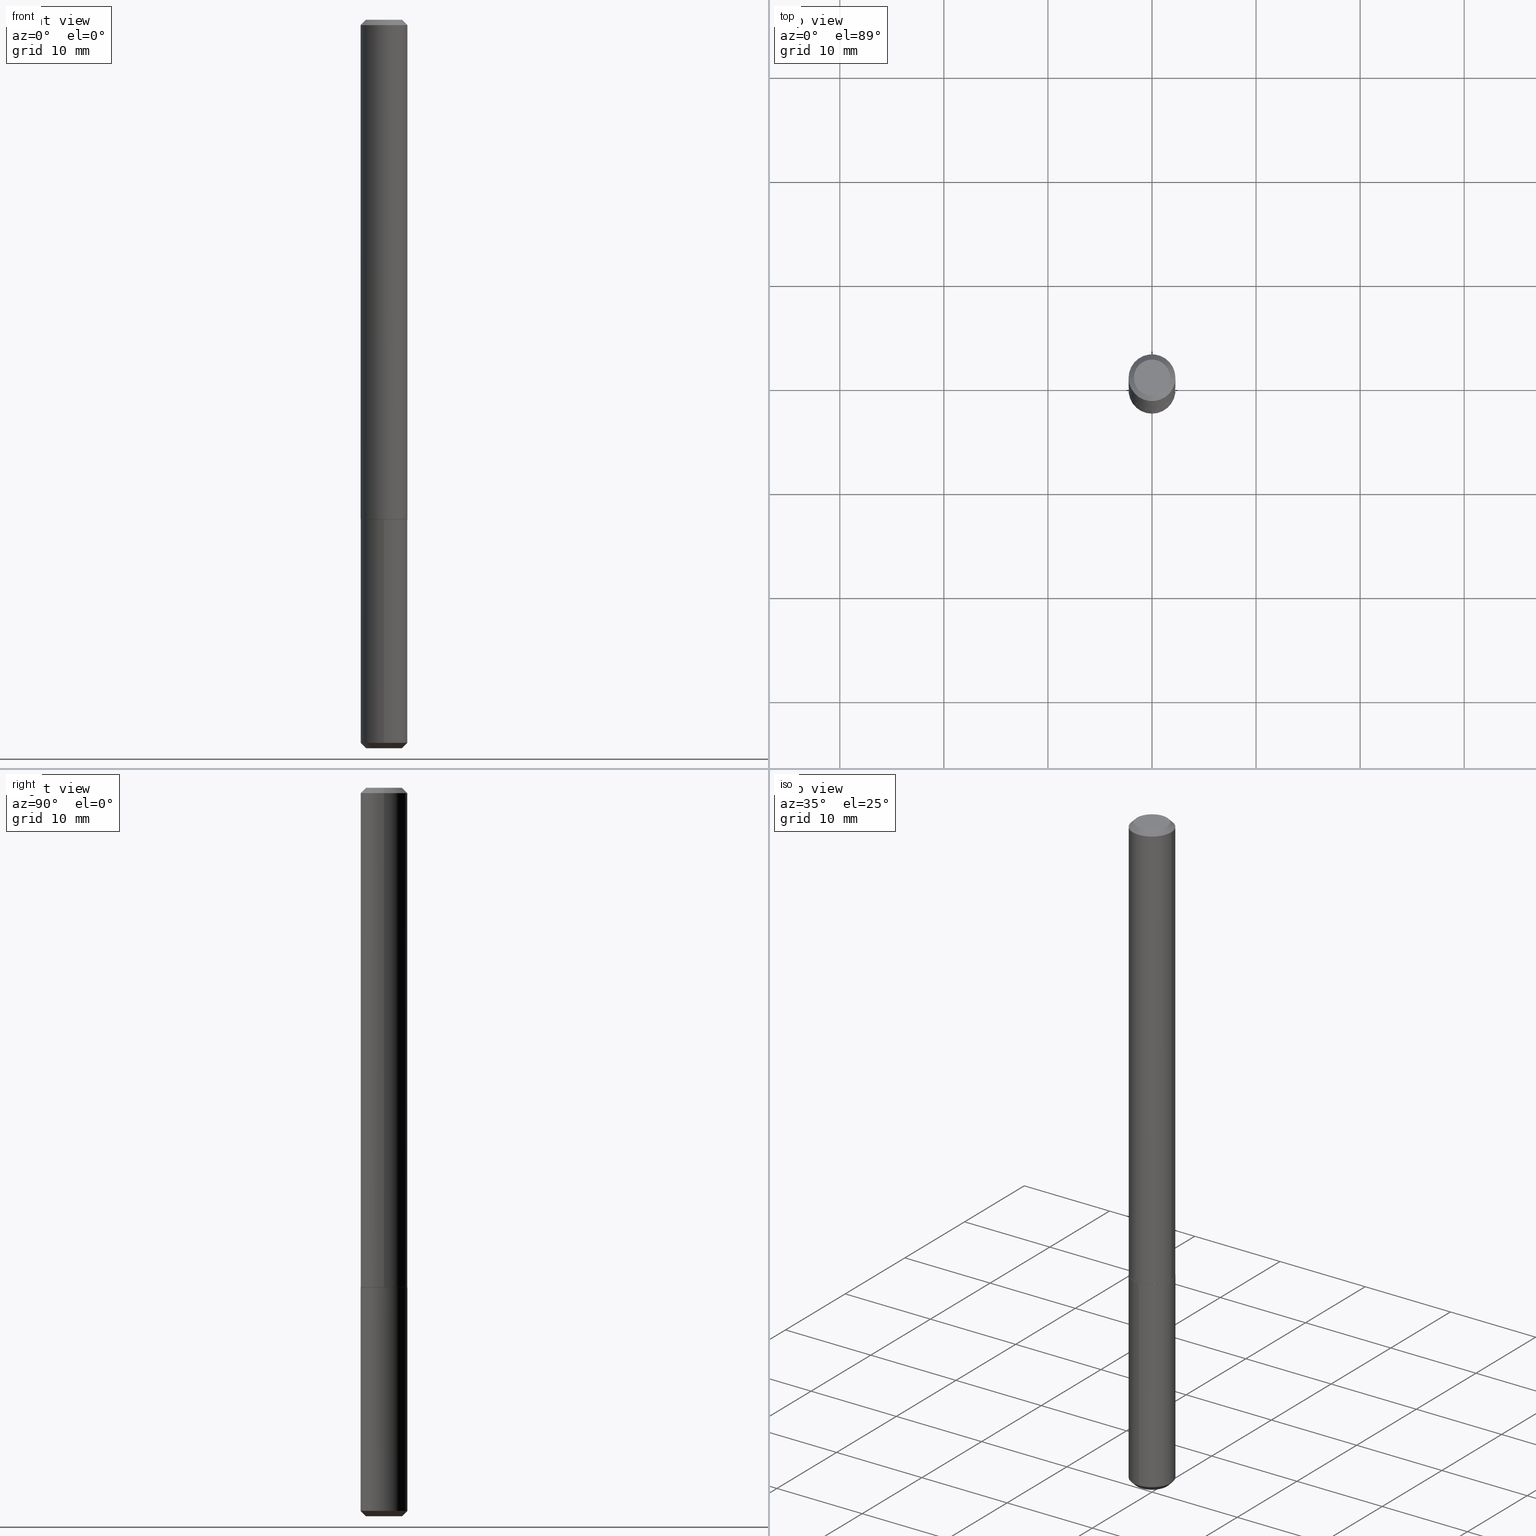
[diagram: canonical four-view strip — front | top / right | iso, engineering-drawing reading convention]
A machine part, canonical four-view strip (front | top / right | iso — engineering-drawing reading convention). The complete STEP part file that produces these views, byte-faithful:
ISO-10303-21;
HEADER;
FILE_DESCRIPTION (( 'STEP AP203' ),
    '1' );
FILE_NAME ('81015.STEP',
    '2024-04-19T13:36:24',
    ( '' ),
    ( '' ),
    'SwSTEP 2.0',
    'SolidWorks 2023',
    '' );
FILE_SCHEMA (( 'CONFIG_CONTROL_DESIGN' ));
ENDSEC;

DATA;
#1 = MANIFOLD_SOLID_BREP ( 'Body-Move/Copy2[1]', #346 ) ;
#2 = VERTEX_POINT ( 'NONE', #390 ) ;
#3 = ADVANCED_FACE ( 'NONE', ( #37 ), #123, .T. ) ;
#4 = EDGE_LOOP ( 'NONE', ( #72, #249, #199, #5 ) ) ;
#5 = ORIENTED_EDGE ( 'NONE', *, *, #144, .F. ) ;
#6 = PLANE ( 'NONE',  #379 ) ;
#7 = APPROVAL_ROLE ( '' ) ;
#8 = CONICAL_SURFACE ( 'NONE', #35, 0.08860000000000001208, 0.7853981633974450594 ) ;
#9 = AXIS2_PLACEMENT_3D ( 'NONE', #47, #100, #168 ) ;
#10 = EDGE_CURVE ( 'NONE', #2, #359, #321, .T. ) ;
#11 = DIRECTION ( 'NONE',  ( -6.982962677686265133E-15, -1.000000000000000000, 3.083349879982238325E-15 ) ) ;
#12 = DIRECTION ( 'NONE',  ( -2.445468806185136597E-29, 3.491481338843145583E-15, 1.000000000000000000 ) ) ;
#13 = CARTESIAN_POINT ( 'NONE',  ( -0.08860000000000022025, -5.966914829592904859E-15, -1.889299999999999979 ) ) ;
#14 = CARTESIAN_POINT ( 'NONE',  ( -0.08860000000000010922, 6.295408638834495408E-16, -4.358176489965852573E-30 ) ) ;
#15 = ORIENTED_EDGE ( 'NONE', *, *, #295, .T. ) ;
#16 = APPLICATION_CONTEXT ( 'configuration controlled 3d designs of mechanical parts and assemblies' ) ;
#17 = CONICAL_SURFACE ( 'NONE', #395, 0.08860000000000022025, 0.7853981633974141952 ) ;
#18 = DIRECTION ( 'NONE',  ( -2.445468806185136597E-29, 3.491481338843145583E-15, 1.000000000000000000 ) ) ;
#19 = CARTESIAN_POINT ( 'NONE',  ( 6.295408638835154106E-16, 0.08859999999999043641, -2.735900000000000887 ) ) ;
#20 = EDGE_CURVE ( 'NONE', #284, #95, #333, .T. ) ;
#21 = DIMENSIONAL_EXPONENTS ( 1.000000000000000000, 0.000000000000000000, 0.000000000000000000, 0.000000000000000000, 0.000000000000000000, 0.000000000000000000, 0.000000000000000000 ) ;
#22 = CARTESIAN_POINT ( 'NONE',  ( 4.621446949928671428E-29, -6.598201434145777579E-15, -1.889800000000000146 ) ) ;
#23 = CARTESIAN_POINT ( 'NONE',  ( 4.621446949928671428E-29, -6.598201434145777579E-15, -1.889800000000000146 ) ) ;
#24 = CIRCLE ( 'NONE', #51, 0.06859999999999998044 ) ;
#25 = CC_DESIGN_APPROVAL ( #354, ( #61 ) ) ;
#26 = DATE_AND_TIME ( #337, #157 ) ;
#27 = PERSON_AND_ORGANIZATION ( #180, #118 ) ;
#28 = CARTESIAN_POINT ( 'NONE',  ( -6.186904932429362941E-16, -0.08860000000000956000, -2.735899999999999554 ) ) ;
#29 = DIRECTION ( 'NONE',  ( -6.982962677686265133E-15, -1.000000000000000000, 6.166699759964476650E-15 ) ) ;
#30 = AXIS2_PLACEMENT_3D ( 'NONE', #183, #277, #86 ) ;
#31 = PERSON_AND_ORGANIZATION_ROLE ( 'design_supplier' ) ;
#32 = PRODUCT_RELATED_PRODUCT_CATEGORY ( 'detail', '', ( #153 ) ) ;
#33 = VERTEX_POINT ( 'NONE', #335 ) ;
#34 = DIRECTION ( 'NONE',  ( 0.7071067811865232589, -2.468850131082003836E-15, 0.7071067811865715536 ) ) ;
#35 = AXIS2_PLACEMENT_3D ( 'NONE', #399, #172, #106 ) ;
#36 = ADVANCED_FACE ( 'NONE', ( #57 ), #408, .F. ) ;
#37 = FACE_OUTER_BOUND ( 'NONE', #99, .T. ) ;
#38 = FACE_OUTER_BOUND ( 'NONE', #342, .T. ) ;
#39 = EDGE_LOOP ( 'NONE', ( #136, #382, #187, #281 ) ) ;
#40 = ORIENTED_EDGE ( 'NONE', *, *, #412, .F. ) ;
#41 = AXIS2_PLACEMENT_3D ( 'NONE', #338, #307, #29 ) ;
#42 = CC_DESIGN_APPROVAL ( #98, ( #67 ) ) ;
#43 = EDGE_CURVE ( 'NONE', #171, #139, #255, .T. ) ;
#44 = CARTESIAN_POINT ( 'NONE',  ( 4.621446949928671428E-29, -6.598201434145777579E-15, -1.889800000000000146 ) ) ;
#45 =( NAMED_UNIT ( * ) PLANE_ANGLE_UNIT ( ) SI_UNIT ( $, .RADIAN. ) );
#46 = CARTESIAN_POINT ( 'NONE',  ( 0.06859999999999999432, -5.741499560132741618E-16, -1.206277097156459940E-18 ) ) ;
#47 = CARTESIAN_POINT ( 'NONE',  ( 6.690041057883811950E-29, -9.553084238477568899E-15, -2.735899999999999999 ) ) ;
#48 = FACE_OUTER_BOUND ( 'NONE', #63, .T. ) ;
#49 = CARTESIAN_POINT ( 'NONE',  ( -0.06859999999999999432, 5.139460530777088931E-16, -1.206277097163614192E-18 ) ) ;
#50 = EDGE_CURVE ( 'NONE', #2, #222, #128, .T. ) ;
#51 = AXIS2_PLACEMENT_3D ( 'NONE', #117, #313, #92 ) ;
#52 = CONICAL_SURFACE ( 'NONE', #9, 0.08859999999999999820, 0.7853981633974538301 ) ;
#53 = ADVANCED_FACE ( 'NONE', ( #90 ), #216, .F. ) ;
#54 = AXIS2_PLACEMENT_3D ( 'NONE', #151, #191, #381 ) ;
#55 = AXIS2_PLACEMENT_3D ( 'NONE', #176, #205, #269 ) ;
#56 = DATE_AND_TIME ( #113, #410 ) ;
#57 = FACE_OUTER_BOUND ( 'NONE', #214, .T. ) ;
#58 = PERSON_AND_ORGANIZATION ( #180, #118 ) ;
#59 = PERSON_AND_ORGANIZATION ( #180, #118 ) ;
#60 = CC_DESIGN_PERSON_AND_ORGANIZATION_ASSIGNMENT ( #350, #204, ( #153 ) ) ;
#61 = PRODUCT_DEFINITION_FORMATION_WITH_SPECIFIED_SOURCE ( 'ANY', '', #153, .NOT_KNOWN. ) ;
#62 = ORIENTED_EDGE ( 'NONE', *, *, #295, .F. ) ;
#63 = EDGE_LOOP ( 'NONE', ( #125, #310 ) ) ;
#64 = DIRECTION ( 'NONE',  ( 2.438088387897960049E-29, -3.491481338843145188E-15, -1.000000000000000000 ) ) ;
#65 = EDGE_CURVE ( 'NONE', #195, #139, #245, .T. ) ;
#66 = ORIENTED_EDGE ( 'NONE', *, *, #266, .T. ) ;
#67 = SECURITY_CLASSIFICATION ( '', '', #273 ) ;
#68 = ORIENTED_EDGE ( 'NONE', *, *, #298, .F. ) ;
#69 = APPLICATION_PROTOCOL_DEFINITION ( 'international standard', 'config_control_design', 1994, #16 ) ;
#70 = EDGE_CURVE ( 'NONE', #345, #33, #225, .T. ) ;
#71 = CYLINDRICAL_SURFACE ( 'NONE', #376, 0.08859999999999999820 ) ;
#72 = ORIENTED_EDGE ( 'NONE', *, *, #306, .F. ) ;
#73 = FACE_OUTER_BOUND ( 'NONE', #380, .T. ) ;
#74 = PLANE ( 'NONE',  #414 ) ;
#75 = DIRECTION ( 'NONE',  ( -2.444857709437584392E-29, 3.492356464167107304E-15, 1.000000000000000000 ) ) ;
#76 = EDGE_CURVE ( 'NONE', #285, #33, #409, .T. ) ;
#77 = DIRECTION ( 'NONE',  ( -2.445468806185136597E-29, 3.491481338843145583E-15, 1.000000000000000000 ) ) ;
#78 = DIRECTION ( 'NONE',  ( 2.445468806185136597E-29, -3.491481338843145583E-15, -1.000000000000000000 ) ) ;
#79 = VECTOR ( 'NONE', #107, 39.37007874015748143 ) ;
#80 = CARTESIAN_POINT ( 'NONE',  ( 6.295408638835171856E-16, 0.08859999999999067233, -2.735900000000000887 ) ) ;
#81 = DATE_AND_TIME ( #145, #186 ) ;
#82 = DIRECTION ( 'NONE',  ( -2.444857709437584392E-29, 3.492356464167107304E-15, 1.000000000000000000 ) ) ;
#83 = AXIS2_PLACEMENT_3D ( 'NONE', #373, #200, #323 ) ;
#84 = DIRECTION ( 'NONE',  ( -6.982962677686265133E-15, -1.000000000000000000, 3.083349879982238325E-15 ) ) ;
#85 = DATE_AND_TIME ( #377, #213 ) ;
#86 = DIRECTION ( 'NONE',  ( 6.982962677686265922E-15, 1.000000000000000000, -3.492356464167107304E-15 ) ) ;
#87 = ADVANCED_FACE ( 'NONE', ( #265 ), #74, .F. ) ;
#88 = DATE_AND_TIME ( #177, #240 ) ;
#89 = VERTEX_POINT ( 'NONE', #46 ) ;
#90 = FACE_OUTER_BOUND ( 'NONE', #161, .T. ) ;
#91 = ORIENTED_EDGE ( 'NONE', *, *, #159, .T. ) ;
#92 = DIRECTION ( 'NONE',  ( -6.982962677686266711E-15, -1.000000000000000000, 0.000000000000000000 ) ) ;
#93 = AXIS2_PLACEMENT_3D ( 'NONE', #23, #175, #102 ) ;
#94 = CIRCLE ( 'NONE', #129, 0.08860000000000001208 ) ;
#95 = VERTEX_POINT ( 'NONE', #141 ) ;
#96 = ORIENTED_EDGE ( 'NONE', *, *, #20, .T. ) ;
#97 = CARTESIAN_POINT ( 'NONE',  ( -0.08860000000000001208, 5.488608664661398519E-16, -0.02000000000000014613 ) ) ;
#98 = APPROVAL ( #405, 'UNSPECIFIED' ) ;
#99 = EDGE_LOOP ( 'NONE', ( #91, #15, #287, #206 ) ) ;
#100 = DIRECTION ( 'NONE',  ( -2.444857709437584392E-29, 3.492356464167107304E-15, 1.000000000000000000 ) ) ;
#101 = DIRECTION ( 'NONE',  ( 0.000000000000000000, 0.000000000000000000, 1.000000000000000000 ) ) ;
#102 = DIRECTION ( 'NONE',  ( -6.982962677686265133E-15, -1.000000000000000000, 3.083349879982238325E-15 ) ) ;
#103 = ORIENTED_EDGE ( 'NONE', *, *, #65, .F. ) ;
#104 = DIRECTION ( 'NONE',  ( 5.024295867788090000E-15, 0.7071067811865539010, 0.7071067811865411334 ) ) ;
#105 = CIRCLE ( 'NONE', #55, 0.06859999999999999432 ) ;
#106 = DIRECTION ( 'NONE',  ( -1.000000000000000000, 6.982962677686266711E-15, 0.000000000000000000 ) ) ;
#107 = DIRECTION ( 'NONE',  ( -2.444857709437584392E-29, 3.492356464167107304E-15, 1.000000000000000000 ) ) ;
#108 = CARTESIAN_POINT ( 'NONE',  ( 0.08860000000000001208, -6.776697493794212409E-16, -0.02000000000000014613 ) ) ;
#109 = APPROVAL_ROLE ( '' ) ;
#110 = APPROVAL_DATE_TIME ( #26, #341 ) ;
#111 = CIRCLE ( 'NONE', #220, 0.06859999999999998044 ) ;
#112 = ADVANCED_FACE ( 'NONE', ( #271 ), #367, .T. ) ;
#113 = CALENDAR_DATE ( 2024, 19, 4 ) ;
#114 = ORIENTED_EDGE ( 'NONE', *, *, #252, .T. ) ;
#115 = CARTESIAN_POINT ( 'NONE',  ( 4.621446949928671428E-29, -6.598201434145777579E-15, -1.889800000000000146 ) ) ;
#116 = AXIS2_PLACEMENT_3D ( 'NONE', #167, #241, #370 ) ;
#117 = CARTESIAN_POINT ( 'NONE',  ( 6.738938212072562932E-29, -9.622931367760906778E-15, -2.755900000000000016 ) ) ;
#118 = ORGANIZATION ( 'UNSPECIFIED', 'UNSPECIFIED', '' ) ;
#119 = MANIFOLD_SOLID_BREP ( 'Body-Move/Copy2[2]', #394 ) ;
#120 = EDGE_LOOP ( 'NONE', ( #349, #260, #156, #190 ) ) ;
#121 = LINE ( 'NONE', #283, #251 ) ;
#122 = ORIENTED_EDGE ( 'NONE', *, *, #375, .T. ) ;
#123 = CYLINDRICAL_SURFACE ( 'NONE', #170, 0.08859999999999999820 ) ;
#124 = DIRECTION ( 'NONE',  ( -2.444857709437584392E-29, 3.492356464167107304E-15, 1.000000000000000000 ) ) ;
#125 = ORIENTED_EDGE ( 'NONE', *, *, #50, .F. ) ;
#126 = EDGE_CURVE ( 'NONE', #95, #284, #163, .T. ) ;
#127 = COORDINATED_UNIVERSAL_TIME_OFFSET ( 5, 0, .BEHIND. ) ;
#128 = CIRCLE ( 'NONE', #54, 0.08810000000000008102 ) ;
#129 = AXIS2_PLACEMENT_3D ( 'NONE', #138, #264, #166 ) ;
#130 = CARTESIAN_POINT ( 'NONE',  ( 0.08860000000000022025, -7.215146186719359029E-15, -1.889299999999999979 ) ) ;
#131 = CARTESIAN_POINT ( 'NONE',  ( -0.08810000000000008102, -5.969564056767016848E-15, -1.889800000000000146 ) ) ;
#132 = DIRECTION ( 'NONE',  ( 1.000000000000000000, -6.982962677686267499E-15, 4.876176775795936353E-29 ) ) ;
#133 = APPLICATION_PROTOCOL_DEFINITION ( 'international standard', 'config_control_design', 1994, #261 ) ;
#134 = EDGE_CURVE ( 'NONE', #89, #285, #404, .T. ) ;
#135 = DIRECTION ( 'NONE',  ( -4.937700262164574863E-15, -0.7071067811865490160, 0.7071067811865460184 ) ) ;
#136 = ORIENTED_EDGE ( 'NONE', *, *, #134, .F. ) ;
#137 = CARTESIAN_POINT ( 'NONE',  ( 6.738938212072562932E-29, -9.622931367760906778E-15, -2.755900000000000016 ) ) ;
#138 = CARTESIAN_POINT ( 'NONE',  ( 4.890937612370308191E-31, -6.982962677686342145E-17, -0.02000000000000014613 ) ) ;
#139 = VERTEX_POINT ( 'NONE', #330 ) ;
#140 = VECTOR ( 'NONE', #297, 39.37007874015748854 ) ;
#141 = CARTESIAN_POINT ( 'NONE',  ( 6.295408638835158051E-16, 0.08859999999999342013, -1.889800000000000368 ) ) ;
#142 = LINE ( 'NONE', #369, #275 ) ;
#143 = CARTESIAN_POINT ( 'NONE',  ( 4.890937612370308191E-31, -6.982962677686342145E-17, -0.02000000000000014613 ) ) ;
#144 = EDGE_CURVE ( 'NONE', #345, #359, #274, .T. ) ;
#145 = CALENDAR_DATE ( 2024, 19, 4 ) ;
#146 = CIRCLE ( 'NONE', #83, 0.06859999999999999432 ) ;
#147 = DIRECTION ( 'NONE',  ( 1.000000000000000000, -6.982962677686267499E-15, 4.876176775795936353E-29 ) ) ;
#148 = APPROVAL_STATUS ( 'not_yet_approved' ) ;
#149 = APPROVAL_DATE_TIME ( #56, #98 ) ;
#150 = ADVANCED_FACE ( 'NONE', ( #360 ), #8, .T. ) ;
#151 = CARTESIAN_POINT ( 'NONE',  ( 4.621446949928671428E-29, -6.598201434145777579E-15, -1.889800000000000146 ) ) ;
#152 = COORDINATED_UNIVERSAL_TIME_OFFSET ( 5, 0, .BEHIND. ) ;
#153 = PRODUCT ( '81015', '81015', '', ( #361 ) ) ;
#154 = ORIENTED_EDGE ( 'NONE', *, *, #43, .T. ) ;
#155 = ORIENTED_EDGE ( 'NONE', *, *, #159, .F. ) ;
#156 = ORIENTED_EDGE ( 'NONE', *, *, #65, .T. ) ;
#157 = LOCAL_TIME ( 9, 36, 24.00000000000000000, #127 ) ;
#158 = ORIENTED_EDGE ( 'NONE', *, *, #76, .T. ) ;
#159 = EDGE_CURVE ( 'NONE', #139, #171, #263, .T. ) ;
#160 = PERSON_AND_ORGANIZATION ( #180, #118 ) ;
#161 = EDGE_LOOP ( 'NONE', ( #253, #388 ) ) ;
#162 = CARTESIAN_POINT ( 'NONE',  ( 4.621446949928671428E-29, -6.598201434145777579E-15, -1.889800000000000146 ) ) ;
#163 = CIRCLE ( 'NONE', #93, 0.08859999999999999820 ) ;
#164 = AXIS2_PLACEMENT_3D ( 'NONE', #362, #329, #147 ) ;
#165 = CC_DESIGN_DATE_AND_TIME_ASSIGNMENT ( #85, #411, ( #67 ) ) ;
#166 = DIRECTION ( 'NONE',  ( 1.000000000000000000, -6.982962677686266711E-15, 0.000000000000000000 ) ) ;
#167 = CARTESIAN_POINT ( 'NONE',  ( 6.690041057883811950E-29, -9.553084238477568899E-15, -2.735899999999999999 ) ) ;
#168 = DIRECTION ( 'NONE',  ( -6.982962677686265133E-15, -1.000000000000000000, 6.166699759964476650E-15 ) ) ;
#169 = DIRECTION ( 'NONE',  ( 1.000000000000000000, -6.982962677686262766E-15, 0.000000000000000000 ) ) ;
#170 = AXIS2_PLACEMENT_3D ( 'NONE', #311, #385, #196 ) ;
#171 = VERTEX_POINT ( 'NONE', #80 ) ;
#172 = DIRECTION ( 'NONE',  ( 2.445468806185136597E-29, -3.491481338843145583E-15, -1.000000000000000000 ) ) ;
#173 = CC_DESIGN_PERSON_AND_ORGANIZATION_ASSIGNMENT ( #211, #184, ( #67 ) ) ;
#174 = DIRECTION ( 'NONE',  ( -6.982962677686265922E-15, -1.000000000000000000, 3.492356464167107304E-15 ) ) ;
#175 = DIRECTION ( 'NONE',  ( -2.444857709437584392E-29, 3.492356464167107304E-15, 1.000000000000000000 ) ) ;
#176 = CARTESIAN_POINT ( 'NONE',  ( 2.949913012720684988E-47, -4.211693974208516862E-33, -1.206277097160142318E-18 ) ) ;
#177 = CALENDAR_DATE ( 2024, 19, 4 ) ;
#178 = CIRCLE ( 'NONE', #340, 0.08860000000000022025 ) ;
#179 = APPROVAL_PERSON_ORGANIZATION ( #27, #354, #378 ) ;
#180 = PERSON ( 'UNSPECIFIED', 'UNSPECIFIED', 'UNSPECIFIED', ('UNSPECIFIED'), ('UNSPECIFIED'), ('UNSPECIFIED') ) ;
#181 = CC_DESIGN_DATE_AND_TIME_ASSIGNMENT ( #81, #304, ( #324 ) ) ;
#182 = PERSON_AND_ORGANIZATION_ROLE ( 'creator' ) ;
#183 = CARTESIAN_POINT ( 'NONE',  ( 4.621446949928671428E-29, -6.598201434145777579E-15, -1.889800000000000146 ) ) ;
#184 = PERSON_AND_ORGANIZATION_ROLE ( 'classification_officer' ) ;
#185 = VECTOR ( 'NONE', #243, 39.37007874015748143 ) ;
#186 = LOCAL_TIME ( 9, 36, 24.00000000000000000, #372 ) ;
#187 = ORIENTED_EDGE ( 'NONE', *, *, #412, .T. ) ;
#188 = EDGE_CURVE ( 'NONE', #348, #89, #146, .T. ) ;
#189 = ORIENTED_EDGE ( 'NONE', *, *, #10, .F. ) ;
#190 = ORIENTED_EDGE ( 'NONE', *, *, #43, .F. ) ;
#191 = DIRECTION ( 'NONE',  ( -2.445468806185136597E-29, 3.491481338843145583E-15, 1.000000000000000000 ) ) ;
#192 = ORIENTED_EDGE ( 'NONE', *, *, #406, .F. ) ;
#193 = FACE_OUTER_BOUND ( 'NONE', #120, .T. ) ;
#194 = EDGE_CURVE ( 'NONE', #195, #215, #111, .T. ) ;
#195 = VERTEX_POINT ( 'NONE', #327 ) ;
#196 = DIRECTION ( 'NONE',  ( -6.982962677686265133E-15, -1.000000000000000000, 3.083349879982238325E-15 ) ) ;
#197 = CARTESIAN_POINT ( 'NONE',  ( 0.000000000000000000, 0.000000000000000000, 0.000000000000000000 ) ) ;
#198 = AXIS2_PLACEMENT_3D ( 'NONE', #197, #291, #132 ) ;
#199 = ORIENTED_EDGE ( 'NONE', *, *, #10, .T. ) ;
#200 = DIRECTION ( 'NONE',  ( -2.445468806185136597E-29, 3.491481338843145583E-15, 1.000000000000000000 ) ) ;
#201 = CYLINDRICAL_SURFACE ( 'NONE', #198, 0.08860000000000010922 ) ;
#202 = DIRECTION ( 'NONE',  ( -6.982962677686266711E-15, -1.000000000000000000, 0.000000000000000000 ) ) ;
#203 = DIRECTION ( 'NONE',  ( -6.982962677686265133E-15, -1.000000000000000000, 6.166699759964476650E-15 ) ) ;
#204 = PERSON_AND_ORGANIZATION_ROLE ( 'design_owner' ) ;
#205 = DIRECTION ( 'NONE',  ( -2.445468806185136597E-29, 3.491481338843145583E-15, 1.000000000000000000 ) ) ;
#206 = ORIENTED_EDGE ( 'NONE', *, *, #252, .F. ) ;
#207 = ADVANCED_FACE ( 'NONE', ( #48 ), #6, .F. ) ;
#208 = DIRECTION ( 'NONE',  ( -2.445468806185136877E-29, 3.491481338843145188E-15, 1.000000000000000000 ) ) ;
#209 = VECTOR ( 'NONE', #34, 39.37007874015748854 ) ;
#210 = CC_DESIGN_SECURITY_CLASSIFICATION ( #67, ( #61 ) ) ;
#211 = PERSON_AND_ORGANIZATION ( #180, #118 ) ;
#212 = ORIENTED_EDGE ( 'NONE', *, *, #126, .T. ) ;
#213 = LOCAL_TIME ( 9, 36, 24.00000000000000000, #308 ) ;
#214 = EDGE_LOOP ( 'NONE', ( #96, #212 ) ) ;
#215 = VERTEX_POINT ( 'NONE', #217 ) ;
#216 = PLANE ( 'NONE',  #270 ) ;
#217 = CARTESIAN_POINT ( 'NONE',  ( 5.584865903075057234E-16, 0.06859999999999036313, -2.755900000000000016 ) ) ;
#218 = ORIENTED_EDGE ( 'NONE', *, *, #235, .F. ) ;
#219 = ADVANCED_FACE ( 'NONE', ( #38 ), #71, .T. ) ;
#220 = AXIS2_PLACEMENT_3D ( 'NONE', #137, #75, #202 ) ;
#221 = CONICAL_SURFACE ( 'NONE', #256, 0.08859999999999999820, 0.7853981633974538301 ) ;
#222 = VERTEX_POINT ( 'NONE', #131 ) ;
#223 = CARTESIAN_POINT ( 'NONE',  ( 0.000000000000000000, 0.000000000000000000, 0.000000000000000000 ) ) ;
#224 = ORIENTED_EDGE ( 'NONE', *, *, #144, .T. ) ;
#225 = LINE ( 'NONE', #14, #299 ) ;
#226 = AXIS2_PLACEMENT_3D ( 'NONE', #366, #18, #402 ) ;
#227 = LINE ( 'NONE', #19, #290 ) ;
#228 =( NAMED_UNIT ( * ) SI_UNIT ( $, .STERADIAN. ) SOLID_ANGLE_UNIT ( ) );
#229 = AXIS2_PLACEMENT_3D ( 'NONE', #223, #101, #357 ) ;
#230 = DIRECTION ( 'NONE',  ( 1.000000000000000000, -6.982962677686266711E-15, 0.000000000000000000 ) ) ;
#231 = CARTESIAN_POINT ( 'NONE',  ( 0.08860000000000001208, -6.885201200198667441E-16, -0.02000000000000014613 ) ) ;
#232 = LENGTH_MEASURE_WITH_UNIT ( LENGTH_MEASURE( 0.02539999999999999897 ), #258 );
#233 = LINE ( 'NONE', #13, #140 ) ;
#234 = EDGE_LOOP ( 'NONE', ( #122, #279, #237, #351 ) ) ;
#235 = EDGE_CURVE ( 'NONE', #215, #195, #24, .T. ) ;
#236 = CARTESIAN_POINT ( 'NONE',  ( -6.186904932429569031E-16, -0.08860000000000659015, -1.889799999999999924 ) ) ;
#237 = ORIENTED_EDGE ( 'NONE', *, *, #76, .F. ) ;
#238 = DIRECTION ( 'NONE',  ( -2.444857709437584112E-29, 3.492356464167107304E-15, 1.000000000000000000 ) ) ;
#239 = DIRECTION ( 'NONE',  ( 1.000000000000000000, -6.982962677686267499E-15, 0.000000000000000000 ) ) ;
#240 = LOCAL_TIME ( 9, 36, 24.00000000000000000, #152 ) ;
#241 = DIRECTION ( 'NONE',  ( -2.444857709437584392E-29, 3.492356464167107304E-15, 1.000000000000000000 ) ) ;
#242 = CARTESIAN_POINT ( 'NONE',  ( 6.295408638834948017E-16, 0.08859999999999340625, -1.889800000000000368 ) ) ;
#243 = DIRECTION ( 'NONE',  ( 0.7071067811865452413, -7.319954787623248157E-15, -0.7071067811865497932 ) ) ;
#244 = COORDINATED_UNIVERSAL_TIME_OFFSET ( 5, 0, .BEHIND. ) ;
#245 = LINE ( 'NONE', #28, #250 ) ;
#246 = APPROVAL_PERSON_ORGANIZATION ( #160, #341, #7 ) ;
#247 = APPROVAL_DATE_TIME ( #88, #354 ) ;
#248 = CC_DESIGN_PERSON_AND_ORGANIZATION_ASSIGNMENT ( #278, #31, ( #61 ) ) ;
#249 = ORIENTED_EDGE ( 'NONE', *, *, #332, .T. ) ;
#250 = VECTOR ( 'NONE', #135, 39.37007874015748143 ) ;
#251 = VECTOR ( 'NONE', #383, 39.37007874015748143 ) ;
#252 = EDGE_CURVE ( 'NONE', #139, #284, #121, .T. ) ;
#253 = ORIENTED_EDGE ( 'NONE', *, *, #188, .T. ) ;
#254 = ORIENTED_EDGE ( 'NONE', *, *, #194, .T. ) ;
#255 = CIRCLE ( 'NONE', #41, 0.08859999999999999820 ) ;
#256 = AXIS2_PLACEMENT_3D ( 'NONE', #317, #124, #203 ) ;
#257 = EDGE_LOOP ( 'NONE', ( #319, #218 ) ) ;
#258 =( LENGTH_UNIT ( ) NAMED_UNIT ( * ) SI_UNIT ( $, .METRE. ) );
#259 = ADVANCED_FACE ( 'NONE', ( #193 ), #221, .T. ) ;
#260 = ORIENTED_EDGE ( 'NONE', *, *, #235, .T. ) ;
#261 = APPLICATION_CONTEXT ( 'configuration controlled 3d designs of mechanical parts and assemblies' ) ;
#262 = DIRECTION ( 'NONE',  ( 1.000000000000000000, -6.982962677686262766E-15, 0.000000000000000000 ) ) ;
#263 = CIRCLE ( 'NONE', #116, 0.08859999999999999820 ) ;
#264 = DIRECTION ( 'NONE',  ( -2.445468806185136597E-29, 3.491481338843145583E-15, 1.000000000000000000 ) ) ;
#265 = FACE_OUTER_BOUND ( 'NONE', #257, .T. ) ;
#266 = EDGE_CURVE ( 'NONE', #215, #171, #227, .T. ) ;
#267 = CARTESIAN_POINT ( 'NONE',  ( 4.890937612370308191E-31, -6.982962677686342145E-17, -0.02000000000000014613 ) ) ;
#268 = DIRECTION ( 'NONE',  ( -1.000000000000000000, 6.982962677686266711E-15, 0.000000000000000000 ) ) ;
#269 = DIRECTION ( 'NONE',  ( 1.000000000000000000, -6.982962677686267499E-15, 4.876127912746388045E-29 ) ) ;
#270 = AXIS2_PLACEMENT_3D ( 'NONE', #343, #64, #303 ) ;
#271 = FACE_OUTER_BOUND ( 'NONE', #39, .T. ) ;
#272 = CARTESIAN_POINT ( 'NONE',  ( 4.620224215525578627E-29, -6.596455693476355287E-15, -1.889299999999999979 ) ) ;
#273 = SECURITY_CLASSIFICATION_LEVEL ( 'unclassified' ) ;
#274 = CIRCLE ( 'NONE', #226, 0.08860000000000022025 ) ;
#275 = VECTOR ( 'NONE', #208, 39.37007874015748143 ) ;
#276 = ADVANCED_FACE ( 'NONE', ( #356 ), #389, .T. ) ;
#277 = DIRECTION ( 'NONE',  ( 2.444857709437584112E-29, -3.492356464167107304E-15, -1.000000000000000000 ) ) ;
#278 = PERSON_AND_ORGANIZATION ( #180, #118 ) ;
#279 = ORIENTED_EDGE ( 'NONE', *, *, #70, .T. ) ;
#280 = ADVANCED_FACE ( 'NONE', ( #73 ), #52, .T. ) ;
#281 = ORIENTED_EDGE ( 'NONE', *, *, #406, .T. ) ;
#282 = APPROVAL_PERSON_ORGANIZATION ( #305, #98, #109 ) ;
#283 = CARTESIAN_POINT ( 'NONE',  ( -6.186904932429569031E-16, -0.08860000000000659015, -1.889799999999999924 ) ) ;
#284 = VERTEX_POINT ( 'NONE', #236 ) ;
#285 = VERTEX_POINT ( 'NONE', #231 ) ;
#286 = APPROVAL_STATUS ( 'not_yet_approved' ) ;
#287 = ORIENTED_EDGE ( 'NONE', *, *, #20, .F. ) ;
#288 = UNCERTAINTY_MEASURE_WITH_UNIT (LENGTH_MEASURE( 1.000000000000000082E-05 ), #391, 'distance_accuracy_value', 'NONE');
#289 = ADVANCED_FACE ( 'NONE', ( #328 ), #17, .T. ) ;
#290 = VECTOR ( 'NONE', #104, 39.37007874015748143 ) ;
#291 = DIRECTION ( 'NONE',  ( -2.445468806185136597E-29, 3.491481338843145583E-15, 1.000000000000000000 ) ) ;
#292 = CARTESIAN_POINT ( 'NONE',  ( 6.739467482965618232E-29, -9.622173421717824390E-15, -2.755900000000000016 ) ) ;
#293 = DIRECTION ( 'NONE',  ( -2.445468806185136877E-29, 3.491481338843145188E-15, 1.000000000000000000 ) ) ;
#294 = FACE_OUTER_BOUND ( 'NONE', #400, .T. ) ;
#295 = EDGE_CURVE ( 'NONE', #171, #95, #396, .T. ) ;
#296 = CIRCLE ( 'NONE', #309, 0.08810000000000008102 ) ;
#297 = DIRECTION ( 'NONE',  ( -0.7071067811865232589, 7.493145998870265808E-15, 0.7071067811865715536 ) ) ;
#298 = EDGE_CURVE ( 'NONE', #89, #348, #105, .T. ) ;
#299 = VECTOR ( 'NONE', #293, 39.37007874015748143 ) ;
#300 = CARTESIAN_POINT ( 'NONE',  ( 0.08860000000000022025, -7.215146186719359029E-15, -1.889299999999999979 ) ) ;
#301 = AXIS2_PLACEMENT_3D ( 'NONE', #143, #78, #268 ) ;
#302 =( GEOMETRIC_REPRESENTATION_CONTEXT ( 3 ) GLOBAL_UNCERTAINTY_ASSIGNED_CONTEXT ( ( #288 ) ) GLOBAL_UNIT_ASSIGNED_CONTEXT ( ( #391, #45, #228 ) ) REPRESENTATION_CONTEXT ( 'NONE', 'WORKASPACE' ) );
#303 = DIRECTION ( 'NONE',  ( -1.000000000000000000, 6.982962677686265922E-15, -4.876176775795935793E-29 ) ) ;
#304 = DATE_TIME_ROLE ( 'creation_date' ) ;
#305 = PERSON_AND_ORGANIZATION ( #180, #118 ) ;
#306 = EDGE_CURVE ( 'NONE', #222, #345, #233, .T. ) ;
#307 = DIRECTION ( 'NONE',  ( -2.444857709437584392E-29, 3.492356464167107304E-15, 1.000000000000000000 ) ) ;
#308 = COORDINATED_UNIVERSAL_TIME_OFFSET ( 5, 0, .BEHIND. ) ;
#309 = AXIS2_PLACEMENT_3D ( 'NONE', #22, #364, #239 ) ;
#310 = ORIENTED_EDGE ( 'NONE', *, *, #332, .F. ) ;
#311 = CARTESIAN_POINT ( 'NONE',  ( 4.621446949928671428E-29, -6.598201434145777579E-15, -1.889800000000000146 ) ) ;
#312 = ORIENTED_EDGE ( 'NONE', *, *, #306, .T. ) ;
#313 = DIRECTION ( 'NONE',  ( -2.444857709437584392E-29, 3.492356464167107304E-15, 1.000000000000000000 ) ) ;
#314 = ORIENTED_EDGE ( 'NONE', *, *, #375, .F. ) ;
#315 = AXIS2_PLACEMENT_3D ( 'NONE', #115, #82, #84 ) ;
#316 = PRODUCT_DEFINITION_SHAPE ( 'NONE', 'NONE',  #324 ) ;
#317 = CARTESIAN_POINT ( 'NONE',  ( 6.690041057883811950E-29, -9.553084238477568899E-15, -2.735899999999999999 ) ) ;
#318 = EDGE_LOOP ( 'NONE', ( #339, #312, #314, #189 ) ) ;
#319 = ORIENTED_EDGE ( 'NONE', *, *, #194, .F. ) ;
#320 = CC_DESIGN_PERSON_AND_ORGANIZATION_ASSIGNMENT ( #58, #182, ( #324 ) ) ;
#321 = LINE ( 'NONE', #130, #209 ) ;
#322 = AXIS2_PLACEMENT_3D ( 'NONE', #267, #374, #230 ) ;
#323 = DIRECTION ( 'NONE',  ( 1.000000000000000000, -6.982962677686267499E-15, 4.876127912746388045E-29 ) ) ;
#324 = PRODUCT_DEFINITION ( 'UNKNOWN', '', #61, #407 ) ;
#325 = DIRECTION ( 'NONE',  ( -0.7071067811865452413, 2.468850131082233000E-15, -0.7071067811865497932 ) ) ;
#326 = ADVANCED_BREP_SHAPE_REPRESENTATION ( '81015', ( #1, #119, #229 ), #302 ) ;
#327 = CARTESIAN_POINT ( 'NONE',  ( -4.790312396892103880E-16, -0.06860000000000961162, -2.755900000000000016 ) ) ;
#328 = FACE_OUTER_BOUND ( 'NONE', #318, .T. ) ;
#329 = DIRECTION ( 'NONE',  ( -2.445468806185136597E-29, 3.491481338843145583E-15, 1.000000000000000000 ) ) ;
#330 = CARTESIAN_POINT ( 'NONE',  ( -6.186904932429345192E-16, -0.08860000000000932407, -2.735899999999999554 ) ) ;
#331 = CARTESIAN_POINT ( 'NONE',  ( -0.08860000000000022025, -5.966914829592904859E-15, -1.889299999999999979 ) ) ;
#332 = EDGE_CURVE ( 'NONE', #222, #2, #296, .T. ) ;
#333 = CIRCLE ( 'NONE', #315, 0.08859999999999999820 ) ;
#334 = PERSON_AND_ORGANIZATION_ROLE ( 'creator' ) ;
#335 = CARTESIAN_POINT ( 'NONE',  ( -0.08860000000000001208, -2.703601796243158075E-15, -0.02000000000000014613 ) ) ;
#336 = ADVANCED_FACE ( 'NONE', ( #398 ), #371, .T. ) ;
#337 = CALENDAR_DATE ( 2024, 19, 4 ) ;
#338 = CARTESIAN_POINT ( 'NONE',  ( 6.690041057883811950E-29, -9.553084238477568899E-15, -2.735899999999999999 ) ) ;
#339 = ORIENTED_EDGE ( 'NONE', *, *, #50, .T. ) ;
#340 = AXIS2_PLACEMENT_3D ( 'NONE', #272, #358, #353 ) ;
#341 = APPROVAL ( #286, 'UNSPECIFIED' ) ;
#342 = EDGE_LOOP ( 'NONE', ( #62, #154, #114, #416 ) ) ;
#343 = CARTESIAN_POINT ( 'NONE',  ( 1.474956506360342494E-47, -2.105846987104258431E-33, -6.031385485800711590E-19 ) ) ;
#344 = DIRECTION ( 'NONE',  ( 1.000000000000000000, -6.982962677686265922E-15, 4.876176775795935793E-29 ) ) ;
#345 = VERTEX_POINT ( 'NONE', #331 ) ;
#346 = CLOSED_SHELL ( 'NONE', ( #3, #280, #259, #219, #36, #87 ) ) ;
#347 = EDGE_CURVE ( 'NONE', #359, #285, #142, .T. ) ;
#348 = VERTEX_POINT ( 'NONE', #49 ) ;
#349 = ORIENTED_EDGE ( 'NONE', *, *, #266, .F. ) ;
#350 = PERSON_AND_ORGANIZATION ( #180, #118 ) ;
#351 = ORIENTED_EDGE ( 'NONE', *, *, #347, .F. ) ;
#352 = DIRECTION ( 'NONE',  ( -2.438088387897960049E-29, 3.491481338843145188E-15, 1.000000000000000000 ) ) ;
#353 = DIRECTION ( 'NONE',  ( 1.000000000000000000, -6.982962677686262766E-15, 0.000000000000000000 ) ) ;
#354 = APPROVAL ( #148, 'UNSPECIFIED' ) ;
#355 = AXIS2_PLACEMENT_3D ( 'NONE', #392, #77, #169 ) ;
#356 = FACE_OUTER_BOUND ( 'NONE', #4, .T. ) ;
#357 = DIRECTION ( 'NONE',  ( 1.000000000000000000, 0.000000000000000000, 0.000000000000000000 ) ) ;
#358 = DIRECTION ( 'NONE',  ( -2.445468806185136597E-29, 3.491481338843145583E-15, 1.000000000000000000 ) ) ;
#359 = VERTEX_POINT ( 'NONE', #300 ) ;
#360 = FACE_OUTER_BOUND ( 'NONE', #413, .T. ) ;
#361 = MECHANICAL_CONTEXT ( 'NONE', #261, 'mechanical' ) ;
#362 = CARTESIAN_POINT ( 'NONE',  ( 0.000000000000000000, 0.000000000000000000, 0.000000000000000000 ) ) ;
#363 = CARTESIAN_POINT ( 'NONE',  ( 4.620224215525578627E-29, -6.596455693476355287E-15, -1.889299999999999979 ) ) ;
#364 = DIRECTION ( 'NONE',  ( -2.445468806185136597E-29, 3.491481338843145583E-15, 1.000000000000000000 ) ) ;
#365 = ORIENTED_EDGE ( 'NONE', *, *, #134, .T. ) ;
#366 = CARTESIAN_POINT ( 'NONE',  ( 4.620224215525578627E-29, -6.596455693476355287E-15, -1.889299999999999979 ) ) ;
#367 = CONICAL_SURFACE ( 'NONE', #301, 0.08860000000000001208, 0.7853981633974450594 ) ;
#368 = VECTOR ( 'NONE', #325, 39.37007874015748143 ) ;
#369 = CARTESIAN_POINT ( 'NONE',  ( 0.08860000000000010922, -6.186904932430040376E-16, 4.320292623355205071E-30 ) ) ;
#370 = DIRECTION ( 'NONE',  ( -6.982962677686265133E-15, -1.000000000000000000, 6.166699759964476650E-15 ) ) ;
#371 = CYLINDRICAL_SURFACE ( 'NONE', #164, 0.08860000000000010922 ) ;
#372 = COORDINATED_UNIVERSAL_TIME_OFFSET ( 5, 0, .BEHIND. ) ;
#373 = CARTESIAN_POINT ( 'NONE',  ( 2.949913012720684988E-47, -4.211693974208516862E-33, -1.206277097160142318E-18 ) ) ;
#374 = DIRECTION ( 'NONE',  ( -2.445468806185136597E-29, 3.491481338843145583E-15, 1.000000000000000000 ) ) ;
#375 = EDGE_CURVE ( 'NONE', #359, #345, #178, .T. ) ;
#376 = AXIS2_PLACEMENT_3D ( 'NONE', #162, #387, #11 ) ;
#377 = CALENDAR_DATE ( 2024, 19, 4 ) ;
#378 = APPROVAL_ROLE ( '' ) ;
#379 = AXIS2_PLACEMENT_3D ( 'NONE', #44, #352, #344 ) ;
#380 = EDGE_LOOP ( 'NONE', ( #254, #66, #155, #103 ) ) ;
#381 = DIRECTION ( 'NONE',  ( 1.000000000000000000, -6.982962677686267499E-15, 0.000000000000000000 ) ) ;
#382 = ORIENTED_EDGE ( 'NONE', *, *, #188, .F. ) ;
#383 = DIRECTION ( 'NONE',  ( -2.444857709437584392E-29, 3.492356464167107304E-15, 1.000000000000000000 ) ) ;
#384 = ORIENTED_EDGE ( 'NONE', *, *, #70, .F. ) ;
#385 = DIRECTION ( 'NONE',  ( -2.444857709437584392E-29, 3.492356464167107304E-15, 1.000000000000000000 ) ) ;
#386 = ADVANCED_FACE ( 'NONE', ( #294 ), #201, .T. ) ;
#387 = DIRECTION ( 'NONE',  ( -2.444857709437584392E-29, 3.492356464167107304E-15, 1.000000000000000000 ) ) ;
#388 = ORIENTED_EDGE ( 'NONE', *, *, #298, .T. ) ;
#389 = CONICAL_SURFACE ( 'NONE', #355, 0.08860000000000022025, 0.7853981633974141952 ) ;
#390 = CARTESIAN_POINT ( 'NONE',  ( 0.08810000000000008102, -7.213400446049938314E-15, -1.889800000000000146 ) ) ;
#391 =( CONVERSION_BASED_UNIT ( 'INCH', #232 ) LENGTH_UNIT ( ) NAMED_UNIT ( #21 ) );
#392 = CARTESIAN_POINT ( 'NONE',  ( 4.620224215525578627E-29, -6.596455693476355287E-15, -1.889299999999999979 ) ) ;
#393 = ORIENTED_EDGE ( 'NONE', *, *, #347, .T. ) ;
#394 = CLOSED_SHELL ( 'NONE', ( #150, #336, #289, #207, #276, #386, #112, #53 ) ) ;
#395 = AXIS2_PLACEMENT_3D ( 'NONE', #363, #12, #262 ) ;
#396 = LINE ( 'NONE', #242, #79 ) ;
#397 = LINE ( 'NONE', #97, #368 ) ;
#398 = FACE_OUTER_BOUND ( 'NONE', #234, .T. ) ;
#399 = CARTESIAN_POINT ( 'NONE',  ( 4.890937612370308191E-31, -6.982962677686342145E-17, -0.02000000000000014613 ) ) ;
#400 = EDGE_LOOP ( 'NONE', ( #384, #224, #393, #192 ) ) ;
#401 = CC_DESIGN_PERSON_AND_ORGANIZATION_ASSIGNMENT ( #59, #334, ( #61 ) ) ;
#402 = DIRECTION ( 'NONE',  ( 1.000000000000000000, -6.982962677686262766E-15, 0.000000000000000000 ) ) ;
#403 = SHAPE_DEFINITION_REPRESENTATION ( #316, #326 ) ;
#404 = LINE ( 'NONE', #108, #185 ) ;
#405 = APPROVAL_STATUS ( 'not_yet_approved' ) ;
#406 = EDGE_CURVE ( 'NONE', #33, #285, #94, .T. ) ;
#407 = DESIGN_CONTEXT ( 'detailed design', #16, 'design' ) ;
#408 = PLANE ( 'NONE',  #30 ) ;
#409 = CIRCLE ( 'NONE', #322, 0.08860000000000001208 ) ;
#410 = LOCAL_TIME ( 9, 36, 24.00000000000000000, #244 ) ;
#411 = DATE_TIME_ROLE ( 'classification_date' ) ;
#412 = EDGE_CURVE ( 'NONE', #348, #33, #397, .T. ) ;
#413 = EDGE_LOOP ( 'NONE', ( #68, #365, #158, #40 ) ) ;
#414 = AXIS2_PLACEMENT_3D ( 'NONE', #292, #238, #174 ) ;
#415 = CC_DESIGN_APPROVAL ( #341, ( #324 ) ) ;
#416 = ORIENTED_EDGE ( 'NONE', *, *, #126, .F. ) ;
ENDSEC;
END-ISO-10303-21;
